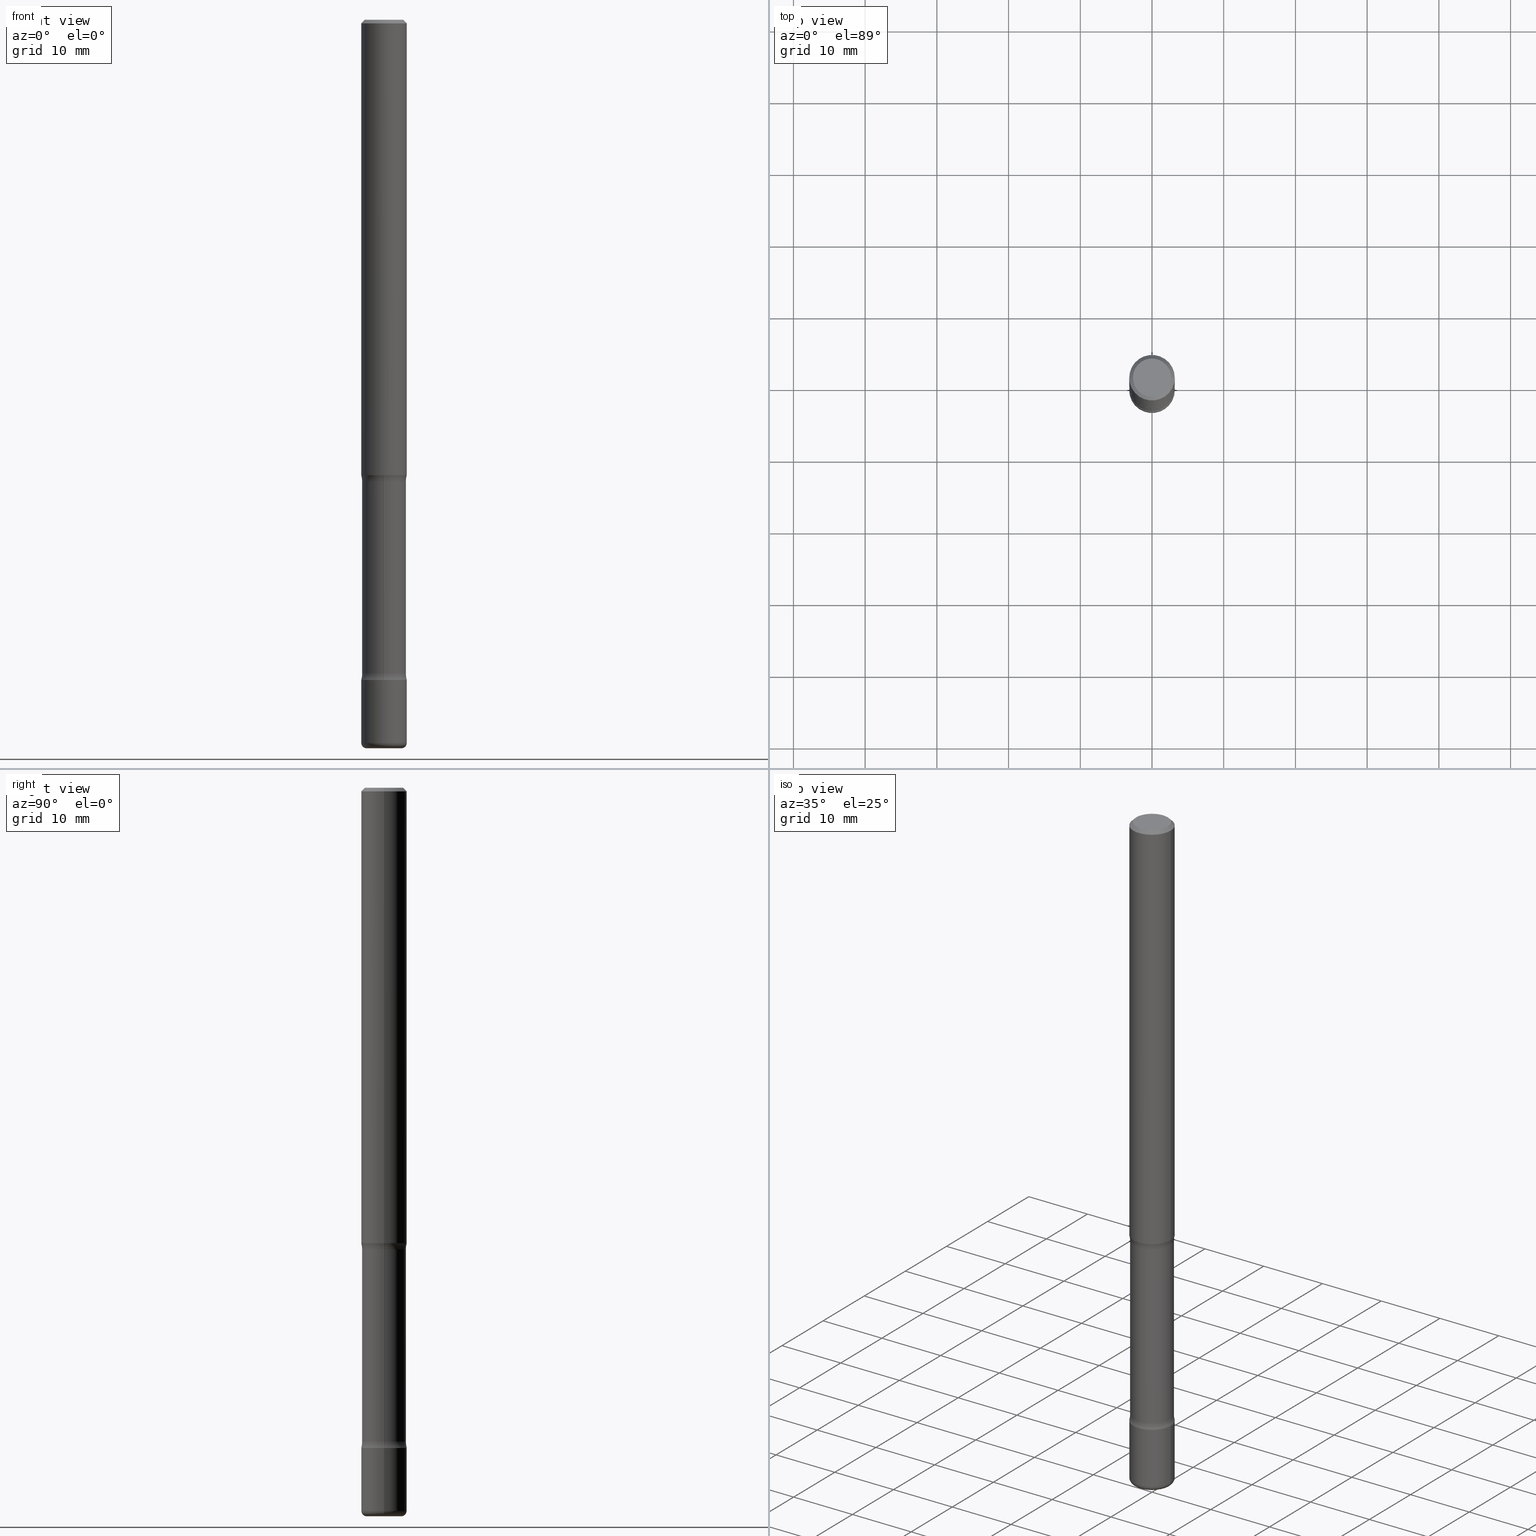
[diagram: canonical four-view strip — front | top / right | iso, engineering-drawing reading convention]
A machine part, canonical four-view strip (front | top / right | iso — engineering-drawing reading convention). The complete STEP part file that produces these views, byte-faithful:
ISO-10303-21;
HEADER;
FILE_DESCRIPTION (( 'STEP AP203' ),
    '1' );
FILE_NAME ('32820.STEP',
    '2023-03-11T07:04:05',
    ( '' ),
    ( '' ),
    'SwSTEP 2.0',
    'SolidWorks 2022',
    '' );
FILE_SCHEMA (( 'CONFIG_CONTROL_DESIGN' ));
ENDSEC;

DATA;
#1 = FACE_OUTER_BOUND ( 'NONE', #273, .T. ) ;
#2 = CARTESIAN_POINT ( 'NONE',  ( -0.1249999999999999584, -1.176844143360627736E-14, -3.624999999999999556 ) ) ;
#3 = DIRECTION ( 'NONE',  ( 1.000000000000000000, -6.982962677686266711E-15, 4.876176775795935793E-29 ) ) ;
#4 = DIRECTION ( 'NONE',  ( 2.445468806185136597E-29, -3.491481338843145583E-15, -1.000000000000000000 ) ) ;
#5 = AXIS2_PLACEMENT_3D ( 'NONE', #493, #652, #580 ) ;
#6 = AXIS2_PLACEMENT_3D ( 'NONE', #561, #365, #695 ) ;
#7 = DIRECTION ( 'NONE',  ( -2.445468806185136597E-29, 3.491481338843145583E-15, 1.000000000000000000 ) ) ;
#8 = MANIFOLD_SOLID_BREP ( 'Body-Move/Copy2[1]', #246 ) ;
#9 = DIRECTION ( 'NONE',  ( -1.000000000000000000, 7.105427357600997914E-15, 0.000000000000000000 ) ) ;
#10 = DIRECTION ( 'NONE',  ( 2.445468806185136597E-29, -3.491481338843145583E-15, -1.000000000000000000 ) ) ;
#11 = ORIENTED_EDGE ( 'NONE', *, *, #459, .T. ) ;
#12 = FACE_OUTER_BOUND ( 'NONE', #169, .T. ) ;
#13 = ADVANCED_FACE ( 'NONE', ( #175 ), #258, .F. ) ;
#14 = CARTESIAN_POINT ( 'NONE',  ( -0.2449999999999998845, -7.110075491355131868E-15, -2.535000000000000586 ) ) ;
#15 = ORIENTED_EDGE ( 'NONE', *, *, #185, .T. ) ;
#16 = TOROIDAL_SURFACE ( 'NONE', #463, 0.2449999999999998845, 0.1250000000000000278 ) ;
#17 = TOROIDAL_SURFACE ( 'NONE', #546, 0.09499999999999998723, 0.02999999999999970399 ) ;
#18 = FACE_OUTER_BOUND ( 'NONE', #376, .T. ) ;
#19 = DIRECTION ( 'NONE',  ( 1.000000000000000000, -6.982962677686258822E-15, 0.000000000000000000 ) ) ;
#20 = ORIENTED_EDGE ( 'NONE', *, *, #207, .T. ) ;
#21 = CARTESIAN_POINT ( 'NONE',  ( -0.1249999999999996947, 8.030407079339181671E-16, -0.02000000000000002470 ) ) ;
#22 = CARTESIAN_POINT ( 'NONE',  ( 9.781875224740545266E-29, -1.396592535537258075E-14, -3.999999999999999556 ) ) ;
#23 = ORIENTED_EDGE ( 'NONE', *, *, #458, .T. ) ;
#24 = EDGE_CURVE ( 'NONE', #671, #733, #764, .T. ) ;
#25 = DIRECTION ( 'NONE',  ( 1.000000000000000000, -6.982962677686266711E-15, 4.876176775795935793E-29 ) ) ;
#26 = ORIENTED_EDGE ( 'NONE', *, *, #42, .T. ) ;
#27 = AXIS2_PLACEMENT_3D ( 'NONE', #366, #682, #132 ) ;
#28 = AXIS2_PLACEMENT_3D ( 'NONE', #196, #511, #762 ) ;
#29 = COORDINATED_UNIVERSAL_TIME_OFFSET ( 5, 0, .BEHIND. ) ;
#30 = CC_DESIGN_SECURITY_CLASSIFICATION ( #401, ( #665 ) ) ;
#31 = CYLINDRICAL_SURFACE ( 'NONE', #318, 0.1250000000000000000 ) ;
#32 = VERTEX_POINT ( 'NONE', #54 ) ;
#33 = CARTESIAN_POINT ( 'NONE',  ( 0.000000000000000000, 0.000000000000000000, 0.000000000000000000 ) ) ;
#34 = MANIFOLD_SOLID_BREP ( 'Body-Move/Copy2[2]', #502 ) ;
#35 = ADVANCED_FACE ( 'NONE', ( #563 ), #608, .F. ) ;
#36 = ORIENTED_EDGE ( 'NONE', *, *, #229, .T. ) ;
#37 = DIRECTION ( 'NONE',  ( 1.000000000000000000, -6.982962677686266711E-15, 4.876176775795935793E-29 ) ) ;
#38 = ORIENTED_EDGE ( 'NONE', *, *, #767, .F. ) ;
#39 = PRODUCT ( '32820', '32820', '', ( #41 ) ) ;
#40 = DIMENSIONAL_EXPONENTS ( 1.000000000000000000, 0.000000000000000000, 0.000000000000000000, 0.000000000000000000, 0.000000000000000000, 0.000000000000000000, 0.000000000000000000 ) ;
#41 = MECHANICAL_CONTEXT ( 'NONE', #267, 'mechanical' ) ;
#42 = EDGE_CURVE ( 'NONE', #733, #671, #701, .T. ) ;
#43 = DIRECTION ( 'NONE',  ( 1.000000000000000000, -6.982962677686266711E-15, 0.000000000000000000 ) ) ;
#44 = ORIENTED_EDGE ( 'NONE', *, *, #425, .T. ) ;
#45 = ORIENTED_EDGE ( 'NONE', *, *, #587, .F. ) ;
#46 = APPROVAL_ROLE ( '' ) ;
#47 = CARTESIAN_POINT ( 'NONE',  ( 9.774246177164491173E-29, -1.395670247582296742E-14, -3.997119036516931345 ) ) ;
#48 = LOCAL_TIME ( 2, 4, 5.000000000000000000, #624 ) ;
#49 = ORIENTED_EDGE ( 'NONE', *, *, #125, .F. ) ;
#50 = DIRECTION ( 'NONE',  ( -1.000000000000000000, 6.982962677686266711E-15, 0.000000000000000000 ) ) ;
#51 = EDGE_LOOP ( 'NONE', ( #705, #20, #415, #45 ) ) ;
#52 = EDGE_CURVE ( 'NONE', #332, #588, #245, .T. ) ;
#53 = DIRECTION ( 'NONE',  ( -6.982962677686265133E-15, -1.000000000000000000, 0.000000000000000000 ) ) ;
#54 = CARTESIAN_POINT ( 'NONE',  ( -0.1250000000000000000, -1.237072196455672054E-14, -3.624999999999999556 ) ) ;
#55 = CALENDAR_DATE ( 2023, 11, 3 ) ;
#56 = CARTESIAN_POINT ( 'NONE',  ( -8.232597597324858622E-16, -0.1200000000000139289, -3.997119036516930457 ) ) ;
#57 = VECTOR ( 'NONE', #311, 39.37007874015748854 ) ;
#58 = AXIS2_PLACEMENT_3D ( 'NONE', #568, #193, #50 ) ;
#59 = CARTESIAN_POINT ( 'NONE',  ( -8.404110047269244572E-16, -0.1200000000000126243, -3.589999999999998970 ) ) ;
#60 = LOCAL_TIME ( 2, 4, 5.000000000000000000, #29 ) ;
#61 = CARTESIAN_POINT ( 'NONE',  ( 4.890937612370279289E-31, -6.982962677686299005E-17, -0.02000000000000002470 ) ) ;
#62 = ADVANCED_FACE ( 'NONE', ( #697 ), #730, .F. ) ;
#63 = DIRECTION ( 'NONE',  ( 2.443900111253762229E-29, -3.493727799269444668E-15, -1.000000000000000000 ) ) ;
#64 = CARTESIAN_POINT ( 'NONE',  ( 8.864824422421120163E-29, -1.265661985330640259E-14, -3.624999999999999556 ) ) ;
#65 = DIRECTION ( 'NONE',  ( 6.982962677686265922E-15, 1.000000000000000000, -3.493727799269444274E-15 ) ) ;
#66 = EDGE_CURVE ( 'NONE', #454, #615, #558, .T. ) ;
#67 = ORIENTED_EDGE ( 'NONE', *, *, #618, .F. ) ;
#68 = DIRECTION ( 'NONE',  ( 6.982962677686265922E-15, 1.000000000000000000, -3.493727799269444274E-15 ) ) ;
#69 = DIRECTION ( 'NONE',  ( -1.000000000000000000, 6.982962677686266711E-15, 0.000000000000000000 ) ) ;
#70 = AXIS2_PLACEMENT_3D ( 'NONE', #113, #377, #685 ) ;
#71 = CIRCLE ( 'NONE', #743, 0.1250000000000000278 ) ;
#72 = LINE ( 'NONE', #270, #573 ) ;
#73 = DIRECTION ( 'NONE',  ( 1.000000000000000000, -6.982962677686266711E-15, 4.883557194083112901E-29 ) ) ;
#74 = EDGE_LOOP ( 'NONE', ( #155, #91 ) ) ;
#75 = CC_DESIGN_PERSON_AND_ORGANIZATION_ASSIGNMENT ( #289, #537, ( #665 ) ) ;
#76 = EDGE_CURVE ( 'NONE', #242, #719, #256, .T. ) ;
#77 = CARTESIAN_POINT ( 'NONE',  ( 8.779287918527237489E-29, -1.253433938033197099E-14, -3.589999999999999858 ) ) ;
#78 = DIRECTION ( 'NONE',  ( 1.000000000000000000, -6.982962677686262766E-15, 0.000000000000000000 ) ) ;
#79 = EDGE_LOOP ( 'NONE', ( #327, #736, #298, #482 ) ) ;
#80 = EDGE_CURVE ( 'NONE', #596, #417, #121, .T. ) ;
#81 = DIRECTION ( 'NONE',  ( -1.000000000000000000, 6.982962677686266711E-15, 0.000000000000000000 ) ) ;
#82 = DIRECTION ( 'NONE',  ( -2.438088387897960049E-29, 3.491481338843145188E-15, 1.000000000000000000 ) ) ;
#83 = ORIENTED_EDGE ( 'NONE', *, *, #52, .F. ) ;
#84 = AXIS2_PLACEMENT_3D ( 'NONE', #566, #380, #744 ) ;
#85 =( GEOMETRIC_REPRESENTATION_CONTEXT ( 3 ) GLOBAL_UNCERTAINTY_ASSIGNED_CONTEXT ( ( #358 ) ) GLOBAL_UNIT_ASSIGNED_CONTEXT ( ( #347, #670, #607 ) ) REPRESENTATION_CONTEXT ( 'NONE', 'WORKASPACE' ) );
#86 = PLANE ( 'NONE',  #560 ) ;
#87 = CARTESIAN_POINT ( 'NONE',  ( -0.1249999999999996947, 8.030407079339181671E-16, -0.02000000000000002470 ) ) ;
#88 = ADVANCED_FACE ( 'NONE', ( #570 ), #305, .T. ) ;
#89 = ORIENTED_EDGE ( 'NONE', *, *, #776, .T. ) ;
#90 = CARTESIAN_POINT ( 'NONE',  ( 6.199263423679323022E-29, -8.850905193967376503E-15, -2.535000000000000586 ) ) ;
#91 = ORIENTED_EDGE ( 'NONE', *, *, #738, .T. ) ;
#92 = DIRECTION ( 'NONE',  ( 2.443900111253762229E-29, -3.493727799269444668E-15, -1.000000000000000000 ) ) ;
#93 = PLANE ( 'NONE',  #765 ) ;
#94 = ORIENTED_EDGE ( 'NONE', *, *, #706, .T. ) ;
#95 = AXIS2_PLACEMENT_3D ( 'NONE', #130, #63, #437 ) ;
#96 = CIRCLE ( 'NONE', #464, 0.1200000000000000927 ) ;
#97 = CARTESIAN_POINT ( 'NONE',  ( -0.1249999999999998473, -1.297300249550716373E-14, -3.970000000000000195 ) ) ;
#98 = DIRECTION ( 'NONE',  ( -2.445468806185136597E-29, 3.491481338843145583E-15, 1.000000000000000000 ) ) ;
#99 = VERTEX_POINT ( 'NONE', #429 ) ;
#100 = DIRECTION ( 'NONE',  ( 6.982962677686265922E-15, 1.000000000000000000, -4.370956789862821150E-15 ) ) ;
#101 = DIRECTION ( 'NONE',  ( -2.445468806185136597E-29, 3.491481338843145583E-15, 1.000000000000000000 ) ) ;
#102 = VERTEX_POINT ( 'NONE', #758 ) ;
#103 = APPLICATION_PROTOCOL_DEFINITION ( 'international standard', 'config_control_design', 1994, #267 ) ;
#104 = CARTESIAN_POINT ( 'NONE',  ( 0.1049999999999996769, -8.238720831321554950E-16, 4.268512490105855498E-18 ) ) ;
#105 = ORIENTED_EDGE ( 'NONE', *, *, #324, .T. ) ;
#106 = CIRCLE ( 'NONE', #803, 0.1200000000000000927 ) ;
#107 = AXIS2_PLACEMENT_3D ( 'NONE', #116, #625, #363 ) ;
#108 = CARTESIAN_POINT ( 'NONE',  ( 6.113672015462842613E-29, -8.728703347107864943E-15, -2.500000000000000000 ) ) ;
#109 = AXIS2_PLACEMENT_3D ( 'NONE', #133, #383, #262 ) ;
#110 = ORIENTED_EDGE ( 'NONE', *, *, #368, .T. ) ;
#111 = ADVANCED_FACE ( 'NONE', ( #632 ), #176, .F. ) ;
#112 = LINE ( 'NONE', #802, #423 ) ;
#113 = CARTESIAN_POINT ( 'NONE',  ( 6.200973301154521135E-29, -8.848456552102710366E-15, -2.535000000000000586 ) ) ;
#114 = CALENDAR_DATE ( 2023, 11, 3 ) ;
#115 = EDGE_LOOP ( 'NONE', ( #336, #419 ) ) ;
#116 = CARTESIAN_POINT ( 'NONE',  ( 9.774246177164491173E-29, -1.395670247582296742E-14, -3.997119036516931345 ) ) ;
#117 = CARTESIAN_POINT ( 'NONE',  ( 9.781875224740546387E-29, -1.396592535537258233E-14, -4.000000000000000000 ) ) ;
#118 = APPROVAL_DATE_TIME ( #550, #800 ) ;
#119 = EDGE_CURVE ( 'NONE', #332, #784, #582, .T. ) ;
#120 = DIRECTION ( 'NONE',  ( -2.445468806185136597E-29, 3.491481338843145583E-15, 1.000000000000000000 ) ) ;
#121 = CIRCLE ( 'NONE', #200, 0.1250000000000000000 ) ;
#122 = AXIS2_PLACEMENT_3D ( 'NONE', #590, #140, #509 ) ;
#123 = DIRECTION ( 'NONE',  ( -2.445468806185136597E-29, 3.491481338843145583E-15, 1.000000000000000000 ) ) ;
#124 = CONICAL_SURFACE ( 'NONE', #636, 1127.411546571649069, 1.535889741755015248 ) ;
#125 = EDGE_CURVE ( 'NONE', #174, #719, #626, .T. ) ;
#126 = SHAPE_DEFINITION_REPRESENTATION ( #182, #496 ) ;
#127 = EDGE_CURVE ( 'NONE', #540, #144, #715, .T. ) ;
#128 = LINE ( 'NONE', #679, #635 ) ;
#129 = VERTEX_POINT ( 'NONE', #179 ) ;
#130 = CARTESIAN_POINT ( 'NONE',  ( 6.115436797260638461E-29, -8.726176079128278767E-15, -2.500000000000000000 ) ) ;
#131 = CARTESIAN_POINT ( 'NONE',  ( 6.199263423679323022E-29, -8.850905193967376503E-15, -2.535000000000000586 ) ) ;
#132 = DIRECTION ( 'NONE',  ( 1.000000000000000000, -6.982962677686266711E-15, 4.883557194083112901E-29 ) ) ;
#133 = CARTESIAN_POINT ( 'NONE',  ( 6.113672015462842613E-29, -8.728703347107864943E-15, -2.500000000000000000 ) ) ;
#134 = CC_DESIGN_PERSON_AND_ORGANIZATION_ASSIGNMENT ( #337, #236, ( #401 ) ) ;
#135 = PLANE ( 'NONE',  #232 ) ;
#136 = AXIS2_PLACEMENT_3D ( 'NONE', #760, #82, #699 ) ;
#137 = VECTOR ( 'NONE', #168, 39.37007874015748854 ) ;
#138 = VERTEX_POINT ( 'NONE', #59 ) ;
#139 = DIRECTION ( 'NONE',  ( 1.000000000000000000, -6.982962677686261189E-15, 0.000000000000000000 ) ) ;
#140 = DIRECTION ( 'NONE',  ( -2.445468806185136597E-29, 3.491481338843145583E-15, 1.000000000000000000 ) ) ;
#141 = ORIENTED_EDGE ( 'NONE', *, *, #80, .T. ) ;
#142 = CARTESIAN_POINT ( 'NONE',  ( 8.728703347108443769E-16, 0.1249999999999912847, -2.500000000000000444 ) ) ;
#143 = DIRECTION ( 'NONE',  ( -2.445468806185136597E-29, 3.491481338843145583E-15, 1.000000000000000000 ) ) ;
#144 = VERTEX_POINT ( 'NONE', #2 ) ;
#145 = EDGE_LOOP ( 'NONE', ( #522, #411 ) ) ;
#146 = CARTESIAN_POINT ( 'NONE',  ( 0.000000000000000000, 0.000000000000000000, 0.000000000000000000 ) ) ;
#147 = CARTESIAN_POINT ( 'NONE',  ( 9.781875224740545266E-29, -1.396592535537258075E-14, -3.999999999999999556 ) ) ;
#148 = EDGE_LOOP ( 'NONE', ( #288, #314, #535, #714 ) ) ;
#149 = VECTOR ( 'NONE', #375, 39.37007874015748143 ) ;
#150 = AXIS2_PLACEMENT_3D ( 'NONE', #108, #101, #668 ) ;
#151 = ADVANCED_FACE ( 'NONE', ( #252 ), #495, .T. ) ;
#152 = AXIS2_PLACEMENT_3D ( 'NONE', #321, #279, #773 ) ;
#153 = DATE_AND_TIME ( #286, #60 ) ;
#154 = CARTESIAN_POINT ( 'NONE',  ( 8.728703347108718885E-16, 0.1249999999999873296, -3.625000000000000444 ) ) ;
#155 = ORIENTED_EDGE ( 'NONE', *, *, #76, .T. ) ;
#156 = DATE_TIME_ROLE ( 'creation_date' ) ;
#157 = FACE_OUTER_BOUND ( 'NONE', #230, .T. ) ;
#158 = DIRECTION ( 'NONE',  ( 6.982962677686265922E-15, 1.000000000000000000, -3.493727799269444274E-15 ) ) ;
#159 = PERSON_AND_ORGANIZATION ( #693, #613 ) ;
#160 = ORIENTED_EDGE ( 'NONE', *, *, #207, .F. ) ;
#161 = DIRECTION ( 'NONE',  ( -6.982962677686266711E-15, -1.000000000000000000, 3.491481338843145583E-15 ) ) ;
#162 = VERTEX_POINT ( 'NONE', #680 ) ;
#163 = ADVANCED_FACE ( 'NONE', ( #750 ), #617, .T. ) ;
#164 = AXIS2_PLACEMENT_3D ( 'NONE', #548, #218, #418 ) ;
#165 = DIRECTION ( 'NONE',  ( 1.000000000000000000, 0.000000000000000000, 0.000000000000000000 ) ) ;
#166 = ORIENTED_EDGE ( 'NONE', *, *, #791, .F. ) ;
#167 = AXIS2_PLACEMENT_3D ( 'NONE', #131, #204, #68 ) ;
#168 = DIRECTION ( 'NONE',  ( -0.9993908270190959842, 6.856857904024576981E-15, -0.03489949670249575808 ) ) ;
#169 = EDGE_LOOP ( 'NONE', ( #387, #320 ) ) ;
#170 = FACE_OUTER_BOUND ( 'NONE', #79, .T. ) ;
#171 = VERTEX_POINT ( 'NONE', #804 ) ;
#172 = ADVANCED_FACE ( 'NONE', ( #250 ), #191, .F. ) ;
#173 = DIRECTION ( 'NONE',  ( 6.982962677686265922E-15, 1.000000000000000000, -3.493727799269444274E-15 ) ) ;
#174 = VERTEX_POINT ( 'NONE', #452 ) ;
#175 = FACE_OUTER_BOUND ( 'NONE', #552, .T. ) ;
#176 = TOROIDAL_SURFACE ( 'NONE', #27, 0.2449999999999998845, 0.1250000000000000278 ) ;
#177 = CIRCLE ( 'NONE', #294, 0.1250000000000000000 ) ;
#178 = DIRECTION ( 'NONE',  ( -2.445468806185136597E-29, 3.491481338843145583E-15, 1.000000000000000000 ) ) ;
#179 = CARTESIAN_POINT ( 'NONE',  ( -0.1200000000000000927, -1.172510407857052291E-14, -3.589999999999999858 ) ) ;
#180 = CARTESIAN_POINT ( 'NONE',  ( 0.1250000000000000000, -1.352949018801718435E-14, -3.624999999999999556 ) ) ;
#181 = EDGE_CURVE ( 'NONE', #471, #700, #335, .T. ) ;
#182 = PRODUCT_DEFINITION_SHAPE ( 'NONE', 'NONE',  #737 ) ;
#183 = DIRECTION ( 'NONE',  ( -2.445468806185136877E-29, 3.491481338843145188E-15, 1.000000000000000000 ) ) ;
#184 = DIRECTION ( 'NONE',  ( -2.445468806185136597E-29, 3.491481338843145583E-15, 1.000000000000000000 ) ) ;
#185 = EDGE_CURVE ( 'NONE', #344, #171, #687, .T. ) ;
#186 = EDGE_CURVE ( 'NONE', #450, #784, #433, .T. ) ;
#187 = ORIENTED_EDGE ( 'NONE', *, *, #66, .F. ) ;
#188 = DIRECTION ( 'NONE',  ( 1.000000000000000000, -6.982962677686262766E-15, 0.000000000000000000 ) ) ;
#189 = AXIS2_PLACEMENT_3D ( 'NONE', #577, #338, #9 ) ;
#190 = AXIS2_PLACEMENT_3D ( 'NONE', #354, #223, #602 ) ;
#191 = PLANE ( 'NONE',  #5 ) ;
#192 = APPROVAL_PERSON_ORGANIZATION ( #717, #367, #46 ) ;
#193 = DIRECTION ( 'NONE',  ( 2.445468806185136597E-29, -3.491481338843145583E-15, -1.000000000000000000 ) ) ;
#194 = CC_DESIGN_PERSON_AND_ORGANIZATION_ASSIGNMENT ( #729, #528, ( #737 ) ) ;
#195 = DIRECTION ( 'NONE',  ( 2.443900111253761669E-29, -3.493727799269444668E-15, -1.000000000000000000 ) ) ;
#196 = CARTESIAN_POINT ( 'NONE',  ( 8.864824422421120163E-29, -1.265661985330640259E-14, -3.624999999999999556 ) ) ;
#197 = DIRECTION ( 'NONE',  ( 2.443900111253762229E-29, -3.493727799269444668E-15, -1.000000000000000000 ) ) ;
#198 = CARTESIAN_POINT ( 'NONE',  ( 0.1249999999999998473, -1.473405124991807072E-14, -3.970000000000000195 ) ) ;
#199 = ADVANCED_FACE ( 'NONE', ( #402 ), #647, .F. ) ;
#200 = AXIS2_PLACEMENT_3D ( 'NONE', #489, #260, #370 ) ;
#201 = ORIENTED_EDGE ( 'NONE', *, *, #458, .F. ) ;
#202 = AXIS2_PLACEMENT_3D ( 'NONE', #707, #661, #782 ) ;
#203 = ORIENTED_EDGE ( 'NONE', *, *, #485, .T. ) ;
#204 = DIRECTION ( 'NONE',  ( 2.443900111253762229E-29, -3.493727799269444668E-15, -1.000000000000000000 ) ) ;
#205 = DIRECTION ( 'NONE',  ( -1.000000000000000000, 7.105427357600994759E-15, 0.000000000000000000 ) ) ;
#206 = ORIENTED_EDGE ( 'NONE', *, *, #185, .F. ) ;
#207 = EDGE_CURVE ( 'NONE', #784, #332, #461, .T. ) ;
#208 = CYLINDRICAL_SURFACE ( 'NONE', #362, 0.1249999999999998473 ) ;
#209 = FACE_OUTER_BOUND ( 'NONE', #772, .T. ) ;
#210 = ORIENTED_EDGE ( 'NONE', *, *, #690, .T. ) ;
#211 = CC_DESIGN_DATE_AND_TIME_ASSIGNMENT ( #779, #156, ( #737 ) ) ;
#212 = DIRECTION ( 'NONE',  ( 1.000000000000000000, -6.982962677686270655E-15, 0.000000000000000000 ) ) ;
#213 = AXIS2_PLACEMENT_3D ( 'NONE', #638, #448, #73 ) ;
#214 = VERTEX_POINT ( 'NONE', #154 ) ;
#215 = AXIS2_PLACEMENT_3D ( 'NONE', #348, #481, #416 ) ;
#216 = AXIS2_PLACEMENT_3D ( 'NONE', #460, #7, #451 ) ;
#217 =( LENGTH_UNIT ( ) NAMED_UNIT ( * ) SI_UNIT ( $, .METRE. ) );
#218 = DIRECTION ( 'NONE',  ( -1.000000000000000000, 6.982962677686265922E-15, -4.883557194083112901E-29 ) ) ;
#219 = EDGE_LOOP ( 'NONE', ( #796, #404, #686, #484 ) ) ;
#220 = ORIENTED_EDGE ( 'NONE', *, *, #523, .T. ) ;
#221 = PERSON_AND_ORGANIZATION_ROLE ( 'design_owner' ) ;
#222 = EDGE_CURVE ( 'NONE', #138, #228, #106, .T. ) ;
#223 = DIRECTION ( 'NONE',  ( -2.445468806185136597E-29, 3.491481338843145583E-15, 1.000000000000000000 ) ) ;
#224 = EDGE_CURVE ( 'NONE', #596, #724, #654, .T. ) ;
#225 = ORIENTED_EDGE ( 'NONE', *, *, #434, .F. ) ;
#226 = PERSON_AND_ORGANIZATION ( #693, #613 ) ;
#227 = DIRECTION ( 'NONE',  ( 6.982962677686265922E-15, 1.000000000000000000, -4.553079989440439092E-15 ) ) ;
#228 = VERTEX_POINT ( 'NONE', #443 ) ;
#229 = EDGE_CURVE ( 'NONE', #238, #450, #398, .T. ) ;
#230 = EDGE_LOOP ( 'NONE', ( #110, #763 ) ) ;
#231 = AXIS2_PLACEMENT_3D ( 'NONE', #557, #753, #692 ) ;
#232 = AXIS2_PLACEMENT_3D ( 'NONE', #516, #322, #326 ) ;
#233 = AXIS2_PLACEMENT_3D ( 'NONE', #266, #579, #759 ) ;
#234 = DIRECTION ( 'NONE',  ( 1.000000000000000000, -6.982962677686262766E-15, 0.000000000000000000 ) ) ;
#235 = ORIENTED_EDGE ( 'NONE', *, *, #470, .T. ) ;
#236 = PERSON_AND_ORGANIZATION_ROLE ( 'classification_officer' ) ;
#237 = EDGE_LOOP ( 'NONE', ( #166, #89, #694, #538 ) ) ;
#238 = VERTEX_POINT ( 'NONE', #397 ) ;
#239 = DIRECTION ( 'NONE',  ( 2.443900111253762229E-29, -3.493727799269444668E-15, -1.000000000000000000 ) ) ;
#240 = ORIENTED_EDGE ( 'NONE', *, *, #328, .F. ) ;
#241 = EDGE_CURVE ( 'NONE', #450, #238, #571, .T. ) ;
#242 = VERTEX_POINT ( 'NONE', #280 ) ;
#243 = ORIENTED_EDGE ( 'NONE', *, *, #403, .F. ) ;
#244 = CARTESIAN_POINT ( 'NONE',  ( 0.09499999999999998723, -1.452456236958748398E-14, -3.970000000000000195 ) ) ;
#245 = LINE ( 'NONE', #506, #149 ) ;
#246 = CLOSED_SHELL ( 'NONE', ( #660, #449, #88, #297, #721, #355, #172, #62 ) ) ;
#247 = CIRCLE ( 'NONE', #584, 0.1250000000000000278 ) ;
#248 = FACE_OUTER_BOUND ( 'NONE', #148, .T. ) ;
#249 = TOROIDAL_SURFACE ( 'NONE', #167, 0.2449999999999998845, 0.1250000000000000278 ) ;
#250 = FACE_OUTER_BOUND ( 'NONE', #145, .T. ) ;
#251 = CARTESIAN_POINT ( 'NONE',  ( 8.779233014204640876E-29, -1.253441800644689261E-14, -3.590000000000000302 ) ) ;
#252 = FACE_OUTER_BOUND ( 'NONE', #518, .T. ) ;
#253 = EDGE_CURVE ( 'NONE', #129, #144, #422, .T. ) ;
#254 = CARTESIAN_POINT ( 'NONE',  ( 6.199263423679323022E-29, -8.850905193967376503E-15, -2.535000000000000586 ) ) ;
#255 = CARTESIAN_POINT ( 'NONE',  ( 1.060531293745186782E-27, -1.514157617551786646E-13, -43.36719777667440923 ) ) ;
#256 = CIRCLE ( 'NONE', #621, 0.08250000000000003164 ) ;
#257 = CYLINDRICAL_SURFACE ( 'NONE', #107, 0.1199999999999999817 ) ;
#258 = TOROIDAL_SURFACE ( 'NONE', #595, 0.2449999999999998845, 0.1250000000000000278 ) ;
#259 = AXIS2_PLACEMENT_3D ( 'NONE', #296, #239, #292 ) ;
#260 = DIRECTION ( 'NONE',  ( -2.445468806185136597E-29, 3.491481338843145583E-15, 1.000000000000000000 ) ) ;
#261 = VECTOR ( 'NONE', #524, 39.37007874015748143 ) ;
#262 = DIRECTION ( 'NONE',  ( 1.000000000000000000, -6.982962677686265922E-15, 4.876176775795935793E-29 ) ) ;
#263 = DIRECTION ( 'NONE',  ( -2.445468806185136597E-29, 3.491481338843145583E-15, 1.000000000000000000 ) ) ;
#264 = ORIENTED_EDGE ( 'NONE', *, *, #631, .F. ) ;
#265 = EDGE_CURVE ( 'NONE', #171, #99, #382, .T. ) ;
#266 = CARTESIAN_POINT ( 'NONE',  ( -1.680822009453962313E-15, -0.2450000000000087108, -2.534999999999999698 ) ) ;
#267 = APPLICATION_CONTEXT ( 'configuration controlled 3d designs of mechanical parts and assemblies' ) ;
#268 = FACE_OUTER_BOUND ( 'NONE', #278, .T. ) ;
#269 = EDGE_LOOP ( 'NONE', ( #264, #220, #203, #581 ) ) ;
#270 = CARTESIAN_POINT ( 'NONE',  ( 0.1249999999999996947, -9.273918764983021797E-16, -0.02000000000000002470 ) ) ;
#271 = DIRECTION ( 'NONE',  ( -1.000000000000000000, 7.105427357601003436E-15, 0.000000000000000000 ) ) ;
#272 = VECTOR ( 'NONE', #183, 39.37007874015748143 ) ;
#273 = EDGE_LOOP ( 'NONE', ( #206, #38, #23, #105 ) ) ;
#274 = CIRCLE ( 'NONE', #233, 0.1250000000000000278 ) ;
#275 = EDGE_LOOP ( 'NONE', ( #283, #594 ) ) ;
#276 = LINE ( 'NONE', #334, #261 ) ;
#277 = DIRECTION ( 'NONE',  ( 1.000000000000000000, -6.982962677686261977E-15, 0.000000000000000000 ) ) ;
#278 = EDGE_LOOP ( 'NONE', ( #669, #235 ) ) ;
#279 = DIRECTION ( 'NONE',  ( -2.445468806185136597E-29, 3.491481338843145583E-15, 1.000000000000000000 ) ) ;
#280 = CARTESIAN_POINT ( 'NONE',  ( -0.08249999999999986511, -1.338983093446346564E-14, -4.000000000000000000 ) ) ;
#281 = ORIENTED_EDGE ( 'NONE', *, *, #523, .F. ) ;
#282 = DIRECTION ( 'NONE',  ( -2.445468806185136597E-29, 3.491481338843145583E-15, 1.000000000000000000 ) ) ;
#283 = ORIENTED_EDGE ( 'NONE', *, *, #80, .F. ) ;
#284 = CIRCLE ( 'NONE', #399, 0.1049999999999996769 ) ;
#285 = CC_DESIGN_PERSON_AND_ORGANIZATION_ASSIGNMENT ( #159, #408, ( #665 ) ) ;
#286 = CALENDAR_DATE ( 2023, 11, 3 ) ;
#287 = DIRECTION ( 'NONE',  ( -2.443900111253761669E-29, 3.493727799269444668E-15, 1.000000000000000000 ) ) ;
#288 = ORIENTED_EDGE ( 'NONE', *, *, #748, .F. ) ;
#289 = PERSON_AND_ORGANIZATION ( #693, #613 ) ;
#290 = DIRECTION ( 'NONE',  ( -2.445468806185136597E-29, 3.491481338843145583E-15, 1.000000000000000000 ) ) ;
#291 = CARTESIAN_POINT ( 'NONE',  ( 6.115436797260638461E-29, -8.726176079128278767E-15, -2.500000000000000000 ) ) ;
#292 = DIRECTION ( 'NONE',  ( 6.982962677686265922E-15, 1.000000000000000000, -4.370956789862821150E-15 ) ) ;
#293 = EDGE_LOOP ( 'NONE', ( #49, #44, #507 ) ) ;
#294 = AXIS2_PLACEMENT_3D ( 'NONE', #789, #161, #234 ) ;
#295 = CIRCLE ( 'NONE', #202, 0.1250000000000000278 ) ;
#296 = CARTESIAN_POINT ( 'NONE',  ( 8.864824422421120163E-29, -1.265661985330640259E-14, -3.624999999999999556 ) ) ;
#297 = ADVANCED_FACE ( 'NONE', ( #209, #774 ), #644, .F. ) ;
#298 = ORIENTED_EDGE ( 'NONE', *, *, #562, .T. ) ;
#299 = EDGE_CURVE ( 'NONE', #417, #596, #444, .T. ) ;
#300 = DATE_TIME_ROLE ( 'classification_date' ) ;
#301 = DIRECTION ( 'NONE',  ( -1.000000000000000000, 6.982962677686265922E-15, -4.883557194083112901E-29 ) ) ;
#302 = ORIENTED_EDGE ( 'NONE', *, *, #125, .T. ) ;
#303 = CARTESIAN_POINT ( 'NONE',  ( 0.1250000000000000000, -9.601573681818648281E-15, -2.500000000000000000 ) ) ;
#304 = DIRECTION ( 'NONE',  ( 1.000000000000000000, -6.982962677686254089E-15, 0.000000000000000000 ) ) ;
#305 = TOROIDAL_SURFACE ( 'NONE', #662, 0.09499999999999998723, 0.02999999999999970399 ) ;
#306 = CIRCLE ( 'NONE', #778, 0.1049999999999996769 ) ;
#307 = AXIS2_PLACEMENT_3D ( 'NONE', #64, #312, #329 ) ;
#308 = DIRECTION ( 'NONE',  ( 1.000000000000000000, -6.982962677686261189E-15, 0.000000000000000000 ) ) ;
#309 = COORDINATED_UNIVERSAL_TIME_OFFSET ( 5, 0, .BEHIND. ) ;
#310 = DIRECTION ( 'NONE',  ( 2.445468806185136597E-29, -3.491481338843145583E-15, -1.000000000000000000 ) ) ;
#311 = DIRECTION ( 'NONE',  ( 0.9993908270190959842, -6.978169709227524922E-15, -0.03489949670249575808 ) ) ;
#312 = DIRECTION ( 'NONE',  ( -2.445468806185136597E-29, 3.491481338843145583E-15, 1.000000000000000000 ) ) ;
#313 = CARTESIAN_POINT ( 'NONE',  ( 9.708511160554992872E-29, -1.386118091520728738E-14, -3.970000000000000195 ) ) ;
#314 = ORIENTED_EDGE ( 'NONE', *, *, #500, .F. ) ;
#315 = ADVANCED_FACE ( 'NONE', ( #268 ), #135, .F. ) ;
#316 = AXIS2_PLACEMENT_3D ( 'NONE', #22, #462, #277 ) ;
#317 = DIRECTION ( 'NONE',  ( 1.000000000000000000, -6.982962677686265922E-15, 4.876176775795935793E-29 ) ) ;
#318 = AXIS2_PLACEMENT_3D ( 'NONE', #735, #282, #37 ) ;
#319 = DIRECTION ( 'NONE',  ( 1.000000000000000000, -6.982962677686264344E-15, 4.883557194083112340E-29 ) ) ;
#320 = ORIENTED_EDGE ( 'NONE', *, *, #42, .F. ) ;
#321 = CARTESIAN_POINT ( 'NONE',  ( 9.781875224740546387E-29, -1.396592535537258233E-14, -4.000000000000000000 ) ) ;
#322 = DIRECTION ( 'NONE',  ( 2.438088387897960049E-29, -3.491481338843145188E-15, -1.000000000000000000 ) ) ;
#323 = EDGE_LOOP ( 'NONE', ( #225, #388, #713, #551 ) ) ;
#324 = EDGE_CURVE ( 'NONE', #99, #171, #649, .T. ) ;
#325 = PLANE ( 'NONE',  #109 ) ;
#326 = DIRECTION ( 'NONE',  ( -1.000000000000000000, 6.982962677686265922E-15, -4.876176775795935793E-29 ) ) ;
#327 = ORIENTED_EDGE ( 'NONE', *, *, #776, .F. ) ;
#328 = EDGE_CURVE ( 'NONE', #588, #32, #531, .T. ) ;
#329 = DIRECTION ( 'NONE',  ( 1.000000000000000000, -6.982962677686262766E-15, 0.000000000000000000 ) ) ;
#330 = DIRECTION ( 'NONE',  ( -0.7071067811865471286, 2.468850131082252722E-15, -0.7071067811865479058 ) ) ;
#331 = AXIS2_PLACEMENT_3D ( 'NONE', #251, #178, #691 ) ;
#332 = VERTEX_POINT ( 'NONE', #198 ) ;
#333 = CIRCLE ( 'NONE', #152, 0.08250000000000003164 ) ;
#334 = CARTESIAN_POINT ( 'NONE',  ( -0.1199999999999999817, -7.876052064195743962E-15, -2.500000000000000000 ) ) ;
#335 = LINE ( 'NONE', #87, #543 ) ;
#336 = ORIENTED_EDGE ( 'NONE', *, *, #767, .T. ) ;
#337 = PERSON_AND_ORGANIZATION ( #693, #613 ) ;
#338 = DIRECTION ( 'NONE',  ( 7.105427357601001859E-15, 1.000000000000000000, -3.491481338843145583E-15 ) ) ;
#339 = EDGE_CURVE ( 'NONE', #724, #700, #412, .T. ) ;
#340 = ORIENTED_EDGE ( 'NONE', *, *, #604, .T. ) ;
#341 = COORDINATED_UNIVERSAL_TIME_OFFSET ( 5, 0, .BEHIND. ) ;
#342 = DIRECTION ( 'NONE',  ( -2.445468806185136597E-29, 3.491481338843145583E-15, 1.000000000000000000 ) ) ;
#343 = AXIS2_PLACEMENT_3D ( 'NONE', #711, #143, #78 ) ;
#344 = VERTEX_POINT ( 'NONE', #785 ) ;
#345 = AXIS2_PLACEMENT_3D ( 'NONE', #739, #795, #173 ) ;
#346 = ADVANCED_FACE ( 'NONE', ( #170 ), #372, .F. ) ;
#347 =( CONVERSION_BASED_UNIT ( 'INCH', #592 ) LENGTH_UNIT ( ) NAMED_UNIT ( #40 ) );
#348 = CARTESIAN_POINT ( 'NONE',  ( 4.890937612370279289E-31, -6.982962677686299005E-17, -0.02000000000000002470 ) ) ;
#349 = VERTEX_POINT ( 'NONE', #104 ) ;
#350 = ORIENTED_EDGE ( 'NONE', *, *, #690, .F. ) ;
#351 = ADVANCED_FACE ( 'NONE', ( #605 ), #539, .T. ) ;
#352 = CARTESIAN_POINT ( 'NONE',  ( -0.1250000000000000278, -3.511088067242232183E-15, -2.500000000000000000 ) ) ;
#353 = ORIENTED_EDGE ( 'NONE', *, *, #127, .F. ) ;
#354 = CARTESIAN_POINT ( 'NONE',  ( 8.779233014204639755E-29, -1.253441800644689103E-14, -3.589999999999999858 ) ) ;
#355 = ADVANCED_FACE ( 'NONE', ( #483 ), #421, .T. ) ;
#356 = ORIENTED_EDGE ( 'NONE', *, *, #434, .T. ) ;
#357 = ORIENTED_EDGE ( 'NONE', *, *, #265, .F. ) ;
#358 = UNCERTAINTY_MEASURE_WITH_UNIT (LENGTH_MEASURE( 1.000000000000000082E-05 ), #347, 'distance_accuracy_value', 'NONE');
#359 = AXIS2_PLACEMENT_3D ( 'NONE', #499, #426, #308 ) ;
#360 = CONICAL_SURFACE ( 'NONE', #58, 0.1249999999999996947, 0.7853981633974477239 ) ;
#361 = APPROVAL_ROLE ( '' ) ;
#362 = AXIS2_PLACEMENT_3D ( 'NONE', #146, #589, #393 ) ;
#363 = DIRECTION ( 'NONE',  ( 6.982962677686265922E-15, 1.000000000000000000, -4.553079989440439092E-15 ) ) ;
#364 = ORIENTED_EDGE ( 'NONE', *, *, #633, .F. ) ;
#365 = DIRECTION ( 'NONE',  ( 2.443900111253762229E-29, -3.493727799269444668E-15, -1.000000000000000000 ) ) ;
#366 = CARTESIAN_POINT ( 'NONE',  ( 6.199263423679323022E-29, -8.850905193967376503E-15, -2.535000000000000586 ) ) ;
#367 = APPROVAL ( #725, 'UNSPECIFIED' ) ;
#368 = EDGE_CURVE ( 'NONE', #214, #102, #435, .T. ) ;
#369 = CARTESIAN_POINT ( 'NONE',  ( 8.864824422421120163E-29, -1.265661985330640259E-14, -3.624999999999999556 ) ) ;
#370 = DIRECTION ( 'NONE',  ( 1.000000000000000000, -6.982962677686270655E-15, 0.000000000000000000 ) ) ;
#371 = AXIS2_PLACEMENT_3D ( 'NONE', #291, #554, #407 ) ;
#372 = TOROIDAL_SURFACE ( 'NONE', #345, 0.2450000000000001066, 0.1250000000000000278 ) ;
#373 = DIRECTION ( 'NONE',  ( 1.000000000000000000, -6.982962677686267499E-15, 4.876206205277409163E-29 ) ) ;
#374 = APPROVAL_PERSON_ORGANIZATION ( #797, #800, #361 ) ;
#375 = DIRECTION ( 'NONE',  ( -2.445468806185136877E-29, 3.491481338843145188E-15, 1.000000000000000000 ) ) ;
#376 = EDGE_LOOP ( 'NONE', ( #591, #549, #600, #532 ) ) ;
#377 = DIRECTION ( 'NONE',  ( 2.443900111253762229E-29, -3.493727799269444668E-15, -1.000000000000000000 ) ) ;
#378 = CARTESIAN_POINT ( 'NONE',  ( 6.113672015462842613E-29, -8.728703347107864943E-15, -2.500000000000000000 ) ) ;
#379 = CC_DESIGN_PERSON_AND_ORGANIZATION_ASSIGNMENT ( #226, #221, ( #39 ) ) ;
#380 = DIRECTION ( 'NONE',  ( -2.445468806185136597E-29, 3.491481338843145583E-15, 1.000000000000000000 ) ) ;
#381 = EDGE_CURVE ( 'NONE', #700, #724, #572, .T. ) ;
#382 = CIRCLE ( 'NONE', #490, 0.1199999999999998845 ) ;
#383 = DIRECTION ( 'NONE',  ( -2.438088387897960049E-29, 3.491481338843145188E-15, 1.000000000000000000 ) ) ;
#384 = AXIS2_PLACEMENT_3D ( 'NONE', #61, #310, #628 ) ;
#385 = APPROVAL_PERSON_ORGANIZATION ( #405, #576, #656 ) ;
#386 = DIRECTION ( 'NONE',  ( 1.000000000000000000, -6.982962677686261977E-15, 0.000000000000000000 ) ) ;
#387 = ORIENTED_EDGE ( 'NONE', *, *, #24, .F. ) ;
#388 = ORIENTED_EDGE ( 'NONE', *, *, #253, .T. ) ;
#389 = CARTESIAN_POINT ( 'NONE',  ( 0.1249999999999996947, -9.273918764983021797E-16, -0.02000000000000002470 ) ) ;
#390 = CARTESIAN_POINT ( 'NONE',  ( 4.890937612370279289E-31, -6.982962677686299005E-17, -0.02000000000000002470 ) ) ;
#391 = ORIENTED_EDGE ( 'NONE', *, *, #339, .F. ) ;
#392 = ORIENTED_EDGE ( 'NONE', *, *, #438, .F. ) ;
#393 = DIRECTION ( 'NONE',  ( 1.000000000000000000, -6.982962677686266711E-15, 4.876176775795935793E-29 ) ) ;
#394 = DIRECTION ( 'NONE',  ( 6.982962677686265922E-15, 1.000000000000000000, -4.553079989440435148E-15 ) ) ;
#395 = ORIENTED_EDGE ( 'NONE', *, *, #674, .F. ) ;
#396 = CARTESIAN_POINT ( 'NONE',  ( 6.113672015462842613E-29, -8.728703347107864943E-15, -2.500000000000000000 ) ) ;
#397 = CARTESIAN_POINT ( 'NONE',  ( 0.09499999999999998723, -1.462930680975277420E-14, -3.999999999999999556 ) ) ;
#398 = CIRCLE ( 'NONE', #634, 0.09499999999999998723 ) ;
#399 = AXIS2_PLACEMENT_3D ( 'NONE', #805, #746, #373 ) ;
#400 = ORIENTED_EDGE ( 'NONE', *, *, #706, .F. ) ;
#401 = SECURITY_CLASSIFICATION ( '', '', #480 ) ;
#402 = FACE_OUTER_BOUND ( 'NONE', #476, .T. ) ;
#403 = EDGE_CURVE ( 'NONE', #344, #162, #676, .T. ) ;
#404 = ORIENTED_EDGE ( 'NONE', *, *, #748, .T. ) ;
#405 = PERSON_AND_ORGANIZATION ( #693, #613 ) ;
#406 = CARTESIAN_POINT ( 'NONE',  ( -0.1049999999999996769, 7.681258945454870110E-16, 4.268512490095161194E-18 ) ) ;
#407 = DIRECTION ( 'NONE',  ( 6.982962677686265922E-15, 1.000000000000000000, -4.370956789862821150E-15 ) ) ;
#408 = PERSON_AND_ORGANIZATION_ROLE ( 'creator' ) ;
#409 = LINE ( 'NONE', #672, #622 ) ;
#410 = AXIS2_PLACEMENT_3D ( 'NONE', #575, #123, #441 ) ;
#411 = ORIENTED_EDGE ( 'NONE', *, *, #587, .T. ) ;
#412 = CIRCLE ( 'NONE', #503, 0.1249999999999996947 ) ;
#413 = LOCAL_TIME ( 2, 4, 5.000000000000000000, #341 ) ;
#414 = COORDINATED_UNIVERSAL_TIME_OFFSET ( 5, 0, .BEHIND. ) ;
#415 = ORIENTED_EDGE ( 'NONE', *, *, #52, .T. ) ;
#416 = DIRECTION ( 'NONE',  ( 1.000000000000000000, -6.982962677686266711E-15, 0.000000000000000000 ) ) ;
#417 = VERTEX_POINT ( 'NONE', #352 ) ;
#418 = DIRECTION ( 'NONE',  ( -6.982962677686265922E-15, -1.000000000000000000, 0.000000000000000000 ) ) ;
#419 = ORIENTED_EDGE ( 'NONE', *, *, #403, .T. ) ;
#420 = ORIENTED_EDGE ( 'NONE', *, *, #487, .T. ) ;
#421 = CYLINDRICAL_SURFACE ( 'NONE', #559, 0.1250000000000000000 ) ;
#422 = CIRCLE ( 'NONE', #742, 0.1250000000000000278 ) ;
#423 = VECTOR ( 'NONE', #749, 39.37007874015748143 ) ;
#424 = FACE_OUTER_BOUND ( 'NONE', #465, .T. ) ;
#425 = EDGE_CURVE ( 'NONE', #174, #242, #473, .T. ) ;
#426 = DIRECTION ( 'NONE',  ( -2.445468806185136597E-29, 3.491481338843145583E-15, 1.000000000000000000 ) ) ;
#427 = APPROVAL_STATUS ( 'not_yet_approved' ) ;
#428 = DIRECTION ( 'NONE',  ( -2.445468806185136597E-29, 3.491481338843145583E-15, 1.000000000000000000 ) ) ;
#429 = CARTESIAN_POINT ( 'NONE',  ( 0.1199999999999998845, -9.688860715289726615E-15, -2.535000000000000586 ) ) ;
#430 = DATE_AND_TIME ( #55, #599 ) ;
#431 = DIRECTION ( 'NONE',  ( 2.443900111253762229E-29, -3.493727799269444668E-15, -1.000000000000000000 ) ) ;
#432 = CARTESIAN_POINT ( 'NONE',  ( 8.779233014204640876E-29, -1.253441800644689261E-14, -3.590000000000000302 ) ) ;
#433 = CIRCLE ( 'NONE', #189, 0.02999999999999969705 ) ;
#434 = EDGE_CURVE ( 'NONE', #129, #486, #545, .T. ) ;
#435 = CIRCLE ( 'NONE', #259, 0.1250000000000000000 ) ;
#436 = DIRECTION ( 'NONE',  ( -6.982962677686266711E-15, -1.000000000000000000, 3.491481338843145583E-15 ) ) ;
#437 = DIRECTION ( 'NONE',  ( 6.982962677686265922E-15, 1.000000000000000000, -4.370956789862821150E-15 ) ) ;
#438 = EDGE_CURVE ( 'NONE', #454, #671, #514, .T. ) ;
#439 = APPLICATION_CONTEXT ( 'configuration controlled 3d designs of mechanical parts and assemblies' ) ;
#440 = FACE_OUTER_BOUND ( 'NONE', #219, .T. ) ;
#441 = DIRECTION ( 'NONE',  ( 1.000000000000000000, -6.982962677686262766E-15, 0.000000000000000000 ) ) ;
#442 = CARTESIAN_POINT ( 'NONE',  ( -8.575622497213803086E-16, -0.1250000000000087153, -2.499999999999999556 ) ) ;
#443 = CARTESIAN_POINT ( 'NONE',  ( 8.379555213224403380E-16, 0.1199999999999875472, -3.590000000000000302 ) ) ;
#444 = CIRCLE ( 'NONE', #612, 0.1250000000000000000 ) ;
#445 = FACE_OUTER_BOUND ( 'NONE', #275, .T. ) ;
#446 = VECTOR ( 'NONE', #431, 39.37007874015748143 ) ;
#447 = CIRCLE ( 'NONE', #307, 0.1250000000000000000 ) ;
#448 = DIRECTION ( 'NONE',  ( -2.445468806185136597E-29, 3.491481338843145583E-15, 1.000000000000000000 ) ) ;
#449 = ADVANCED_FACE ( 'NONE', ( #542 ), #31, .T. ) ;
#450 = VERTEX_POINT ( 'NONE', #593 ) ;
#451 = DIRECTION ( 'NONE',  ( 1.000000000000000000, -6.982962677686270655E-15, 0.000000000000000000 ) ) ;
#452 = CARTESIAN_POINT ( 'NONE',  ( 9.768559658038258986E-29, -1.396484589486830171E-14, -3.997119036516931345 ) ) ;
#453 = ORIENTED_EDGE ( 'NONE', *, *, #119, .T. ) ;
#454 = VERTEX_POINT ( 'NONE', #726 ) ;
#455 = FACE_OUTER_BOUND ( 'NONE', #659, .T. ) ;
#456 = DIRECTION ( 'NONE',  ( -2.445468806185136597E-29, 3.491481338843145583E-15, 1.000000000000000000 ) ) ;
#457 = EDGE_LOOP ( 'NONE', ( #353, #786 ) ) ;
#458 = EDGE_CURVE ( 'NONE', #162, #99, #177, .T. ) ;
#459 = EDGE_CURVE ( 'NONE', #417, #700, #409, .T. ) ;
#460 = CARTESIAN_POINT ( 'NONE',  ( 6.113672015462842613E-29, -8.728703347107864943E-15, -2.500000000000000000 ) ) ;
#461 = CIRCLE ( 'NONE', #343, 0.1250000000000000000 ) ;
#462 = DIRECTION ( 'NONE',  ( -2.445468806185136597E-29, 3.491481338843145583E-15, 1.000000000000000000 ) ) ;
#463 = AXIS2_PLACEMENT_3D ( 'NONE', #254, #428, #619 ) ;
#464 = AXIS2_PLACEMENT_3D ( 'NONE', #684, #120, #564 ) ;
#465 = EDGE_LOOP ( 'NONE', ( #610, #781, #395, #642 ) ) ;
#466 = DIRECTION ( 'NONE',  ( -2.445468806185136597E-29, 3.491481338843145583E-15, 1.000000000000000000 ) ) ;
#467 = CARTESIAN_POINT ( 'NONE',  ( 6.199263423679323022E-29, -8.850905193967376503E-15, -2.535000000000000586 ) ) ;
#468 = CYLINDRICAL_SURFACE ( 'NONE', #755, 0.1249999999999998473 ) ;
#469 = EDGE_LOOP ( 'NONE', ( #36, #709, #497, #67 ) ) ;
#470 = EDGE_CURVE ( 'NONE', #349, #471, #306, .T. ) ;
#471 = VERTEX_POINT ( 'NONE', #406 ) ;
#472 = APPROVAL_DATE_TIME ( #541, #367 ) ;
#473 = LINE ( 'NONE', #731, #137 ) ;
#474 = ADVANCED_FACE ( 'NONE', ( #157 ), #93, .F. ) ;
#475 = CLOSED_SHELL ( 'NONE', ( #696, #611, #111, #555, #734, #163, #199, #151 ) ) ;
#476 = EDGE_LOOP ( 'NONE', ( #769, #364, #340, #519 ) ) ;
#477 = CONICAL_SURFACE ( 'NONE', #384, 0.1249999999999996947, 0.7853981633974477239 ) ;
#478 = ADVANCED_FACE ( 'NONE', ( #783 ), #468, .T. ) ;
#479 = AXIS2_PLACEMENT_3D ( 'NONE', #77, #197, #637 ) ;
#480 = SECURITY_CLASSIFICATION_LEVEL ( 'unclassified' ) ;
#481 = DIRECTION ( 'NONE',  ( -2.445468806185136597E-29, 3.491481338843145583E-15, 1.000000000000000000 ) ) ;
#482 = ORIENTED_EDGE ( 'NONE', *, *, #674, .T. ) ;
#483 = FACE_OUTER_BOUND ( 'NONE', #51, .T. ) ;
#484 = ORIENTED_EDGE ( 'NONE', *, *, #181, .F. ) ;
#485 = EDGE_CURVE ( 'NONE', #454, #228, #128, .T. ) ;
#486 = VERTEX_POINT ( 'NONE', #498 ) ;
#487 = EDGE_CURVE ( 'NONE', #486, #99, #504, .T. ) ;
#488 = DIRECTION ( 'NONE',  ( 1.000000000000000000, -6.982962677686273810E-15, 0.000000000000000000 ) ) ;
#489 = CARTESIAN_POINT ( 'NONE',  ( 6.113672015462842613E-29, -8.728703347107864943E-15, -2.500000000000000000 ) ) ;
#490 = AXIS2_PLACEMENT_3D ( 'NONE', #90, #263, #19 ) ;
#491 = CIRCLE ( 'NONE', #598, 0.1250000000000000000 ) ;
#492 = DIRECTION ( 'NONE',  ( -2.445468806185136597E-29, 3.491481338843145583E-15, 1.000000000000000000 ) ) ;
#493 = CARTESIAN_POINT ( 'NONE',  ( 8.864824422421120163E-29, -1.265661985330640259E-14, -3.624999999999999556 ) ) ;
#494 = DIRECTION ( 'NONE',  ( -6.982962677686266711E-15, -1.000000000000000000, 3.491481338843145583E-15 ) ) ;
#495 = CYLINDRICAL_SURFACE ( 'NONE', #359, 0.1199999999999999817 ) ;
#496 = ADVANCED_BREP_SHAPE_REPRESENTATION ( '32820', ( #8, #34, #569, #567, #623 ), #85 ) ;
#497 = ORIENTED_EDGE ( 'NONE', *, *, #119, .F. ) ;
#498 = CARTESIAN_POINT ( 'NONE',  ( 0.1200000000000000927, -1.337237352776924272E-14, -3.589999999999999858 ) ) ;
#499 = CARTESIAN_POINT ( 'NONE',  ( 6.113672015462842613E-29, -8.728703347107864943E-15, -2.500000000000000000 ) ) ;
#500 = EDGE_CURVE ( 'NONE', #471, #349, #284, .T. ) ;
#501 = ADVANCED_FACE ( 'NONE', ( #440 ), #360, .T. ) ;
#502 = CLOSED_SHELL ( 'NONE', ( #478, #501, #565, #315, #650, #683 ) ) ;
#503 = AXIS2_PLACEMENT_3D ( 'NONE', #390, #98, #43 ) ;
#504 = LINE ( 'NONE', #757, #272 ) ;
#505 = CC_DESIGN_APPROVAL ( #800, ( #401 ) ) ;
#506 = CARTESIAN_POINT ( 'NONE',  ( 0.1250000000000000000, -8.728703347107833388E-16, 6.095220969744919741E-30 ) ) ;
#507 = ORIENTED_EDGE ( 'NONE', *, *, #738, .F. ) ;
#508 = CARTESIAN_POINT ( 'NONE',  ( 9.708511160554992872E-29, -1.386118091520728738E-14, -3.970000000000000195 ) ) ;
#509 = DIRECTION ( 'NONE',  ( 1.000000000000000000, -6.982962677686258822E-15, 0.000000000000000000 ) ) ;
#510 = PLANE ( 'NONE',  #515 ) ;
#511 = DIRECTION ( 'NONE',  ( -2.445468806185136597E-29, 3.491481338843145583E-15, 1.000000000000000000 ) ) ;
#512 = ORIENTED_EDGE ( 'NONE', *, *, #487, .F. ) ;
#513 = CARTESIAN_POINT ( 'NONE',  ( 0.08249999999999986511, -1.453191644018873450E-14, -4.000000000000000000 ) ) ;
#514 = CIRCLE ( 'NONE', #164, 0.1250000000000000278 ) ;
#515 = AXIS2_PLACEMENT_3D ( 'NONE', #396, #195, #630 ) ;
#516 = CARTESIAN_POINT ( 'NONE',  ( 7.332110811570557564E-16, 0.1049999999999996769, -3.644712843334789960E-16 ) ) ;
#517 = EDGE_CURVE ( 'NONE', #784, #32, #112, .T. ) ;
#518 = EDGE_LOOP ( 'NONE', ( #350, #356, #420, #357 ) ) ;
#519 = ORIENTED_EDGE ( 'NONE', *, *, #127, .T. ) ;
#520 = CYLINDRICAL_SURFACE ( 'NONE', #689, 0.1199999999999999817 ) ;
#521 = DIRECTION ( 'NONE',  ( -2.445468806185136877E-29, 3.491481338843145188E-15, 1.000000000000000000 ) ) ;
#522 = ORIENTED_EDGE ( 'NONE', *, *, #328, .T. ) ;
#523 = EDGE_CURVE ( 'NONE', #615, #454, #716, .T. ) ;
#524 = DIRECTION ( 'NONE',  ( -2.445468806185136877E-29, 3.491481338843145188E-15, 1.000000000000000000 ) ) ;
#525 = CARTESIAN_POINT ( 'NONE',  ( -0.2450000000000001066, -1.079358830383464797E-14, -3.590000000000000302 ) ) ;
#526 = ORIENTED_EDGE ( 'NONE', *, *, #76, .F. ) ;
#527 = ADVANCED_FACE ( 'NONE', ( #424 ), #257, .T. ) ;
#528 = PERSON_AND_ORGANIZATION_ROLE ( 'creator' ) ;
#529 = AXIS2_PLACEMENT_3D ( 'NONE', #255, #4, #69 ) ;
#530 = DIRECTION ( 'NONE',  ( -2.445468806185136877E-29, 3.491481338843145188E-15, 1.000000000000000000 ) ) ;
#531 = CIRCLE ( 'NONE', #28, 0.1250000000000000000 ) ;
#532 = ORIENTED_EDGE ( 'NONE', *, *, #381, .F. ) ;
#533 = APPROVAL_DATE_TIME ( #153, #576 ) ;
#534 = DIRECTION ( 'NONE',  ( -6.982962677686265922E-15, -1.000000000000000000, 3.493727799269444668E-15 ) ) ;
#535 = ORIENTED_EDGE ( 'NONE', *, *, #181, .T. ) ;
#536 = EDGE_LOOP ( 'NONE', ( #793, #210, #655, #512 ) ) ;
#537 = PERSON_AND_ORGANIZATION_ROLE ( 'design_supplier' ) ;
#538 = ORIENTED_EDGE ( 'NONE', *, *, #562, .F. ) ;
#539 = CYLINDRICAL_SURFACE ( 'NONE', #688, 0.1199999999999999817 ) ;
#540 = VERTEX_POINT ( 'NONE', #614 ) ;
#541 = DATE_AND_TIME ( #794, #732 ) ;
#542 = FACE_OUTER_BOUND ( 'NONE', #639, .T. ) ;
#543 = VECTOR ( 'NONE', #330, 39.37007874015748143 ) ;
#544 = EDGE_LOOP ( 'NONE', ( #801, #302, #526 ) ) ;
#545 = CIRCLE ( 'NONE', #190, 0.1200000000000000927 ) ;
#546 = AXIS2_PLACEMENT_3D ( 'NONE', #508, #698, #710 ) ;
#547 = APPLICATION_PROTOCOL_DEFINITION ( 'international standard', 'config_control_design', 1994, #439 ) ;
#548 = CARTESIAN_POINT ( 'NONE',  ( 1.710825856033196165E-15, 0.2449999999999910305, -2.535000000000001918 ) ) ;
#549 = ORIENTED_EDGE ( 'NONE', *, *, #299, .T. ) ;
#550 = DATE_AND_TIME ( #114, #48 ) ;
#551 = ORIENTED_EDGE ( 'NONE', *, *, #604, .F. ) ;
#552 = EDGE_LOOP ( 'NONE', ( #281, #94, #26, #392 ) ) ;
#553 = DIRECTION ( 'NONE',  ( 1.000000000000000000, -6.982962677686261189E-15, 0.000000000000000000 ) ) ;
#554 = DIRECTION ( 'NONE',  ( 2.443900111253762229E-29, -3.493727799269444668E-15, -1.000000000000000000 ) ) ;
#555 = ADVANCED_FACE ( 'NONE', ( #1 ), #16, .F. ) ;
#556 = CARTESIAN_POINT ( 'NONE',  ( 0.2450000000000001066, -1.424524386248003079E-14, -3.590000000000000302 ) ) ;
#557 = CARTESIAN_POINT ( 'NONE',  ( 8.864824422421120163E-29, -1.265661985330640259E-14, -3.624999999999999556 ) ) ;
#558 = CIRCLE ( 'NONE', #70, 0.1199999999999998845 ) ;
#559 = AXIS2_PLACEMENT_3D ( 'NONE', #675, #342, #25 ) ;
#560 = AXIS2_PLACEMENT_3D ( 'NONE', #378, #640, #317 ) ;
#561 = CARTESIAN_POINT ( 'NONE',  ( 6.200973301154521135E-29, -8.848456552102710366E-15, -2.535000000000000586 ) ) ;
#562 = EDGE_CURVE ( 'NONE', #214, #228, #71, .T. ) ;
#563 = FACE_OUTER_BOUND ( 'NONE', #237, .T. ) ;
#564 = DIRECTION ( 'NONE',  ( 1.000000000000000000, -6.982962677686262766E-15, 0.000000000000000000 ) ) ;
#565 = ADVANCED_FACE ( 'NONE', ( #248 ), #477, .T. ) ;
#566 = CARTESIAN_POINT ( 'NONE',  ( 8.864824422421120163E-29, -1.265661985330640259E-14, -3.624999999999999556 ) ) ;
#567 = MANIFOLD_SOLID_BREP ( 'Body-Move/Copy2[4]', #609 ) ;
#568 = CARTESIAN_POINT ( 'NONE',  ( 4.890937612370279289E-31, -6.982962677686299005E-17, -0.02000000000000002470 ) ) ;
#569 = MANIFOLD_SOLID_BREP ( 'Body-Move/Copy2[3]', #475 ) ;
#570 = FACE_OUTER_BOUND ( 'NONE', #469, .T. ) ;
#571 = CIRCLE ( 'NONE', #316, 0.09499999999999998723 ) ;
#572 = CIRCLE ( 'NONE', #215, 0.1249999999999996947 ) ;
#573 = VECTOR ( 'NONE', #761, 39.37007874015748143 ) ;
#574 = DIRECTION ( 'NONE',  ( -2.445468806185136597E-29, 3.491481338843145583E-15, 1.000000000000000000 ) ) ;
#575 = CARTESIAN_POINT ( 'NONE',  ( 9.708511160554992872E-29, -1.386118091520728738E-14, -3.970000000000000195 ) ) ;
#576 = APPROVAL ( #787, 'UNSPECIFIED' ) ;
#577 = CARTESIAN_POINT ( 'NONE',  ( -0.09499999999999998723, -1.318616531623519397E-14, -3.970000000000000195 ) ) ;
#578 = ORIENTED_EDGE ( 'NONE', *, *, #618, .T. ) ;
#579 = DIRECTION ( 'NONE',  ( 1.000000000000000000, -6.860497997771530774E-15, 4.840771368418438207E-29 ) ) ;
#580 = DIRECTION ( 'NONE',  ( -1.000000000000000000, 6.982962677686265922E-15, -4.876176775795935793E-29 ) ) ;
#581 = ORIENTED_EDGE ( 'NONE', *, *, #222, .F. ) ;
#582 = CIRCLE ( 'NONE', #410, 0.1250000000000000000 ) ;
#583 = FACE_OUTER_BOUND ( 'NONE', #544, .T. ) ;
#584 = AXIS2_PLACEMENT_3D ( 'NONE', #556, #436, #553 ) ;
#585 = CIRCLE ( 'NONE', #479, 0.1200000000000000927 ) ;
#586 = DIRECTION ( 'NONE',  ( 7.105427357601001859E-15, 1.000000000000000000, -3.491481338843145583E-15 ) ) ;
#587 = EDGE_CURVE ( 'NONE', #32, #588, #491, .T. ) ;
#588 = VERTEX_POINT ( 'NONE', #180 ) ;
#589 = DIRECTION ( 'NONE',  ( -2.445468806185136597E-29, 3.491481338843145583E-15, 1.000000000000000000 ) ) ;
#590 = CARTESIAN_POINT ( 'NONE',  ( 6.199263423679323022E-29, -8.850905193967376503E-15, -2.535000000000000586 ) ) ;
#591 = ORIENTED_EDGE ( 'NONE', *, *, #459, .F. ) ;
#592 = LENGTH_MEASURE_WITH_UNIT ( LENGTH_MEASURE( 0.02539999999999999897 ), #217 );
#593 = CARTESIAN_POINT ( 'NONE',  ( -0.09499999999999998723, -1.313195612595382632E-14, -3.999999999999999556 ) ) ;
#594 = ORIENTED_EDGE ( 'NONE', *, *, #299, .F. ) ;
#595 = AXIS2_PLACEMENT_3D ( 'NONE', #467, #723, #158 ) ;
#596 = VERTEX_POINT ( 'NONE', #303 ) ;
#597 = CARTESIAN_POINT ( 'NONE',  ( 8.864824422421120163E-29, -1.265661985330640259E-14, -3.624999999999999556 ) ) ;
#598 = AXIS2_PLACEMENT_3D ( 'NONE', #369, #492, #188 ) ;
#599 = LOCAL_TIME ( 2, 4, 5.000000000000000000, #309 ) ;
#600 = ORIENTED_EDGE ( 'NONE', *, *, #224, .T. ) ;
#601 = CALENDAR_DATE ( 2023, 11, 3 ) ;
#602 = DIRECTION ( 'NONE',  ( 1.000000000000000000, -6.982962677686262766E-15, 0.000000000000000000 ) ) ;
#603 = ORIENTED_EDGE ( 'NONE', *, *, #241, .F. ) ;
#604 = EDGE_CURVE ( 'NONE', #486, #540, #247, .T. ) ;
#605 = FACE_OUTER_BOUND ( 'NONE', #269, .T. ) ;
#606 = EDGE_LOOP ( 'NONE', ( #400, #187, #653, #645 ) ) ;
#607 =( NAMED_UNIT ( * ) SI_UNIT ( $, .STERADIAN. ) SOLID_ANGLE_UNIT ( ) );
#608 = TOROIDAL_SURFACE ( 'NONE', #754, 0.2450000000000001066, 0.1250000000000000278 ) ;
#609 = CLOSED_SHELL ( 'NONE', ( #527, #35, #13, #751, #727, #474, #346, #351 ) ) ;
#610 = ORIENTED_EDGE ( 'NONE', *, *, #66, .T. ) ;
#611 = ADVANCED_FACE ( 'NONE', ( #798 ), #702, .F. ) ;
#612 = AXIS2_PLACEMENT_3D ( 'NONE', #718, #456, #212 ) ;
#613 = ORGANIZATION ( 'UNSPECIFIED', 'UNSPECIFIED', '' ) ;
#614 = CARTESIAN_POINT ( 'NONE',  ( 0.1249999999999999584, -1.352949018801718435E-14, -3.624999999999999556 ) ) ;
#615 = VERTEX_POINT ( 'NONE', #616 ) ;
#616 = CARTESIAN_POINT ( 'NONE',  ( -8.404110047269507855E-16, -0.1200000000000087386, -2.535000000000000142 ) ) ;
#617 = PLANE ( 'NONE',  #231 ) ;
#618 = EDGE_CURVE ( 'NONE', #238, #332, #664, .T. ) ;
#619 = DIRECTION ( 'NONE',  ( 1.000000000000000000, -6.982962677686266711E-15, 4.883557194083112901E-29 ) ) ;
#620 = CARTESIAN_POINT ( 'NONE',  ( 8.979369734839232680E-18, -1.395586652513355883E-14, -3.997119036516931345 ) ) ;
#621 = AXIS2_PLACEMENT_3D ( 'NONE', #117, #184, #304 ) ;
#622 = VECTOR ( 'NONE', #530, 39.37007874015748143 ) ;
#623 = AXIS2_PLACEMENT_3D ( 'NONE', #33, #720, #165 ) ;
#624 = COORDINATED_UNIVERSAL_TIME_OFFSET ( 5, 0, .BEHIND. ) ;
#625 = DIRECTION ( 'NONE',  ( 2.443900111253762229E-29, -3.493727799269444668E-15, -1.000000000000000000 ) ) ;
#626 = LINE ( 'NONE', #620, #57 ) ;
#627 = ORIENTED_EDGE ( 'NONE', *, *, #241, .T. ) ;
#628 = DIRECTION ( 'NONE',  ( -1.000000000000000000, 6.982962677686266711E-15, 0.000000000000000000 ) ) ;
#629 = DIRECTION ( 'NONE',  ( 2.443900111253762229E-29, -3.493727799269444668E-15, -1.000000000000000000 ) ) ;
#630 = DIRECTION ( 'NONE',  ( 6.982962677686265922E-15, 1.000000000000000000, -3.493727799269444668E-15 ) ) ;
#631 = EDGE_CURVE ( 'NONE', #615, #138, #741, .T. ) ;
#632 = FACE_OUTER_BOUND ( 'NONE', #799, .T. ) ;
#633 = EDGE_CURVE ( 'NONE', #486, #129, #96, .T. ) ;
#634 = AXIS2_PLACEMENT_3D ( 'NONE', #147, #708, #386 ) ;
#635 = VECTOR ( 'NONE', #681, 39.37007874015748143 ) ;
#636 = AXIS2_PLACEMENT_3D ( 'NONE', #643, #10, #81 ) ;
#637 = DIRECTION ( 'NONE',  ( 6.982962677686265922E-15, 1.000000000000000000, -4.553079989440435148E-15 ) ) ;
#638 = CARTESIAN_POINT ( 'NONE',  ( 8.779233014204640876E-29, -1.253441800644689261E-14, -3.590000000000000302 ) ) ;
#639 = EDGE_LOOP ( 'NONE', ( #453, #666, #240, #83 ) ) ;
#640 = DIRECTION ( 'NONE',  ( -2.438088387897960049E-29, 3.491481338843145188E-15, 1.000000000000000000 ) ) ;
#641 = CARTESIAN_POINT ( 'NONE',  ( 8.779287918527237489E-29, -1.253433938033197099E-14, -3.589999999999999858 ) ) ;
#642 = ORIENTED_EDGE ( 'NONE', *, *, #485, .F. ) ;
#643 = CARTESIAN_POINT ( 'NONE',  ( 1.060531293745186782E-27, -1.514157617551786646E-13, -43.36719777667440923 ) ) ;
#644 = PLANE ( 'NONE',  #136 ) ;
#645 = ORIENTED_EDGE ( 'NONE', *, *, #24, .T. ) ;
#646 = EDGE_CURVE ( 'NONE', #144, #540, #447, .T. ) ;
#647 = TOROIDAL_SURFACE ( 'NONE', #213, 0.2450000000000001066, 0.1250000000000000278 ) ;
#648 = FACE_OUTER_BOUND ( 'NONE', #115, .T. ) ;
#649 = CIRCLE ( 'NONE', #122, 0.1199999999999998845 ) ;
#650 = ADVANCED_FACE ( 'NONE', ( #445 ), #325, .F. ) ;
#651 = CC_DESIGN_APPROVAL ( #367, ( #737 ) ) ;
#652 = DIRECTION ( 'NONE',  ( 2.438088387897960049E-29, -3.491481338843145188E-15, -1.000000000000000000 ) ) ;
#653 = ORIENTED_EDGE ( 'NONE', *, *, #438, .T. ) ;
#654 = LINE ( 'NONE', #704, #777 ) ;
#655 = ORIENTED_EDGE ( 'NONE', *, *, #324, .F. ) ;
#656 = APPROVAL_ROLE ( '' ) ;
#657 = DIRECTION ( 'NONE',  ( 2.443900111253762229E-29, -3.493727799269444668E-15, -1.000000000000000000 ) ) ;
#658 = PRODUCT_RELATED_PRODUCT_CATEGORY ( 'detail', '', ( #39 ) ) ;
#659 = EDGE_LOOP ( 'NONE', ( #728, #627, #578, #160 ) ) ;
#660 = ADVANCED_FACE ( 'NONE', ( #583 ), #124, .F. ) ;
#661 = DIRECTION ( 'NONE',  ( 1.000000000000000000, -6.860497997771530774E-15, 4.840771368418438207E-29 ) ) ;
#662 = AXIS2_PLACEMENT_3D ( 'NONE', #313, #806, #319 ) ;
#663 = CARTESIAN_POINT ( 'NONE',  ( 0.000000000000000000, 0.000000000000000000, 0.000000000000000000 ) ) ;
#664 = CIRCLE ( 'NONE', #790, 0.02999999999999969705 ) ;
#665 = PRODUCT_DEFINITION_FORMATION_WITH_SPECIFIED_SOURCE ( 'ANY', '', #39, .NOT_KNOWN. ) ;
#666 = ORIENTED_EDGE ( 'NONE', *, *, #517, .T. ) ;
#667 = CARTESIAN_POINT ( 'NONE',  ( 8.864824422421120163E-29, -1.265661985330640259E-14, -3.624999999999999556 ) ) ;
#668 = DIRECTION ( 'NONE',  ( 1.000000000000000000, -6.982962677686270655E-15, 0.000000000000000000 ) ) ;
#669 = ORIENTED_EDGE ( 'NONE', *, *, #500, .T. ) ;
#670 =( NAMED_UNIT ( * ) PLANE_ANGLE_UNIT ( ) SI_UNIT ( $, .RADIAN. ) );
#671 = VERTEX_POINT ( 'NONE', #142 ) ;
#672 = CARTESIAN_POINT ( 'NONE',  ( -0.1249999999999998473, 8.881784197001241477E-16, -6.148668862818624520E-30 ) ) ;
#673 = ORIENTED_EDGE ( 'NONE', *, *, #224, .F. ) ;
#674 = EDGE_CURVE ( 'NONE', #228, #138, #585, .T. ) ;
#675 = CARTESIAN_POINT ( 'NONE',  ( 0.000000000000000000, 0.000000000000000000, 0.000000000000000000 ) ) ;
#676 = CIRCLE ( 'NONE', #150, 0.1250000000000000000 ) ;
#677 = EDGE_LOOP ( 'NONE', ( #141, #11, #391, #673 ) ) ;
#678 = AXIS2_PLACEMENT_3D ( 'NONE', #667, #92, #100 ) ;
#679 = CARTESIAN_POINT ( 'NONE',  ( 8.379555213224496071E-16, 0.1199999999999860345, -3.997119036516931789 ) ) ;
#680 = CARTESIAN_POINT ( 'NONE',  ( 0.1250000000000000000, -9.601573681818649859E-15, -2.500000000000000000 ) ) ;
#681 = DIRECTION ( 'NONE',  ( 2.443900111253762229E-29, -3.493727799269444668E-15, -1.000000000000000000 ) ) ;
#682 = DIRECTION ( 'NONE',  ( -2.445468806185136597E-29, 3.491481338843145583E-15, 1.000000000000000000 ) ) ;
#683 = ADVANCED_FACE ( 'NONE', ( #18 ), #208, .T. ) ;
#684 = CARTESIAN_POINT ( 'NONE',  ( 8.779233014204639755E-29, -1.253441800644689103E-14, -3.589999999999999858 ) ) ;
#685 = DIRECTION ( 'NONE',  ( 6.982962677686265922E-15, 1.000000000000000000, -4.553079989440443036E-15 ) ) ;
#686 = ORIENTED_EDGE ( 'NONE', *, *, #339, .T. ) ;
#687 = CIRCLE ( 'NONE', #788, 0.1250000000000000000 ) ;
#688 = AXIS2_PLACEMENT_3D ( 'NONE', #47, #657, #227 ) ;
#689 = AXIS2_PLACEMENT_3D ( 'NONE', #770, #574, #139 ) ;
#690 = EDGE_CURVE ( 'NONE', #129, #171, #276, .T. ) ;
#691 = DIRECTION ( 'NONE',  ( 1.000000000000000000, -6.982962677686266711E-15, 4.883557194083112901E-29 ) ) ;
#692 = DIRECTION ( 'NONE',  ( -1.000000000000000000, 6.982962677686265922E-15, -4.876176775795935793E-29 ) ) ;
#693 = PERSON ( 'UNSPECIFIED', 'UNSPECIFIED', 'UNSPECIFIED', ('UNSPECIFIED'), ('UNSPECIFIED'), ('UNSPECIFIED') ) ;
#694 = ORIENTED_EDGE ( 'NONE', *, *, #222, .T. ) ;
#695 = DIRECTION ( 'NONE',  ( 6.982962677686265922E-15, 1.000000000000000000, -4.553079989440443036E-15 ) ) ;
#696 = ADVANCED_FACE ( 'NONE', ( #703 ), #520, .T. ) ;
#697 = FACE_OUTER_BOUND ( 'NONE', #293, .T. ) ;
#698 = DIRECTION ( 'NONE',  ( -2.445468806185136597E-29, 3.491481338843145583E-15, 1.000000000000000000 ) ) ;
#699 = DIRECTION ( 'NONE',  ( 1.000000000000000000, -6.982962677686265922E-15, 4.876176775795935793E-29 ) ) ;
#700 = VERTEX_POINT ( 'NONE', #21 ) ;
#701 = CIRCLE ( 'NONE', #95, 0.1250000000000000000 ) ;
#702 = TOROIDAL_SURFACE ( 'NONE', #331, 0.2450000000000001066, 0.1250000000000000278 ) ;
#703 = FACE_OUTER_BOUND ( 'NONE', #536, .T. ) ;
#704 = CARTESIAN_POINT ( 'NONE',  ( 0.1249999999999998473, -8.728703347107822541E-16, 6.095220969744912034E-30 ) ) ;
#705 = ORIENTED_EDGE ( 'NONE', *, *, #517, .F. ) ;
#706 = EDGE_CURVE ( 'NONE', #615, #733, #274, .T. ) ;
#707 = CARTESIAN_POINT ( 'NONE',  ( -1.680822009453938056E-15, -0.2450000000000126521, -3.589999999999998970 ) ) ;
#708 = DIRECTION ( 'NONE',  ( -2.445468806185136597E-29, 3.491481338843145583E-15, 1.000000000000000000 ) ) ;
#709 = ORIENTED_EDGE ( 'NONE', *, *, #186, .T. ) ;
#710 = DIRECTION ( 'NONE',  ( 1.000000000000000000, -6.982962677686264344E-15, 4.883557194083112340E-29 ) ) ;
#711 = CARTESIAN_POINT ( 'NONE',  ( 9.708511160554992872E-29, -1.386118091520728738E-14, -3.970000000000000195 ) ) ;
#712 = DESIGN_CONTEXT ( 'detailed design', #439, 'design' ) ;
#713 = ORIENTED_EDGE ( 'NONE', *, *, #646, .T. ) ;
#714 = ORIENTED_EDGE ( 'NONE', *, *, #381, .T. ) ;
#715 = CIRCLE ( 'NONE', #84, 0.1250000000000000000 ) ;
#716 = CIRCLE ( 'NONE', #6, 0.1199999999999998845 ) ;
#717 = PERSON_AND_ORGANIZATION ( #693, #613 ) ;
#718 = CARTESIAN_POINT ( 'NONE',  ( 6.113672015462842613E-29, -8.728703347107864943E-15, -2.500000000000000000 ) ) ;
#719 = VERTEX_POINT ( 'NONE', #513 ) ;
#720 = DIRECTION ( 'NONE',  ( 0.000000000000000000, 0.000000000000000000, 1.000000000000000000 ) ) ;
#721 = ADVANCED_FACE ( 'NONE', ( #455 ), #17, .T. ) ;
#722 = DIRECTION ( 'NONE',  ( 1.000000000000000000, -6.982962677686267499E-15, 4.876206205277409163E-29 ) ) ;
#723 = DIRECTION ( 'NONE',  ( 2.443900111253762229E-29, -3.493727799269444668E-15, -1.000000000000000000 ) ) ;
#724 = VERTEX_POINT ( 'NONE', #389 ) ;
#725 = APPROVAL_STATUS ( 'not_yet_approved' ) ;
#726 = CARTESIAN_POINT ( 'NONE',  ( 8.379555213224131223E-16, 0.1199999999999910305, -2.535000000000001030 ) ) ;
#727 = ADVANCED_FACE ( 'NONE', ( #12 ), #510, .F. ) ;
#728 = ORIENTED_EDGE ( 'NONE', *, *, #186, .F. ) ;
#729 = PERSON_AND_ORGANIZATION ( #693, #613 ) ;
#730 = CONICAL_SURFACE ( 'NONE', #529, 1127.411546571649069, 1.535889741755015248 ) ;
#731 = CARTESIAN_POINT ( 'NONE',  ( -8.979369734643735383E-18, -1.395586652513355883E-14, -3.997119036516931345 ) ) ;
#732 = LOCAL_TIME ( 2, 4, 5.000000000000000000, #414 ) ;
#733 = VERTEX_POINT ( 'NONE', #442 ) ;
#734 = ADVANCED_FACE ( 'NONE', ( #648 ), #86, .T. ) ;
#735 = CARTESIAN_POINT ( 'NONE',  ( 0.000000000000000000, 0.000000000000000000, 0.000000000000000000 ) ) ;
#736 = ORIENTED_EDGE ( 'NONE', *, *, #368, .F. ) ;
#737 = PRODUCT_DEFINITION ( 'UNKNOWN', '', #665, #712 ) ;
#738 = EDGE_CURVE ( 'NONE', #719, #242, #333, .T. ) ;
#739 = CARTESIAN_POINT ( 'NONE',  ( 8.779233014204640876E-29, -1.253441800644689261E-14, -3.590000000000000302 ) ) ;
#740 = ORIENTED_EDGE ( 'NONE', *, *, #265, .T. ) ;
#741 = LINE ( 'NONE', #56, #446 ) ;
#742 = AXIS2_PLACEMENT_3D ( 'NONE', #525, #771, #205 ) ;
#743 = AXIS2_PLACEMENT_3D ( 'NONE', #752, #301, #53 ) ;
#744 = DIRECTION ( 'NONE',  ( 1.000000000000000000, -6.982962677686262766E-15, 0.000000000000000000 ) ) ;
#745 = CIRCLE ( 'NONE', #678, 0.1250000000000000000 ) ;
#746 = DIRECTION ( 'NONE',  ( -2.445468806185136597E-29, 3.491481338843145583E-15, 1.000000000000000000 ) ) ;
#747 = CC_DESIGN_DATE_AND_TIME_ASSIGNMENT ( #430, #300, ( #401 ) ) ;
#748 = EDGE_CURVE ( 'NONE', #349, #724, #72, .T. ) ;
#749 = DIRECTION ( 'NONE',  ( -2.445468806185136877E-29, 3.491481338843145188E-15, 1.000000000000000000 ) ) ;
#750 = FACE_OUTER_BOUND ( 'NONE', #457, .T. ) ;
#751 = ADVANCED_FACE ( 'NONE', ( #766 ), #249, .F. ) ;
#752 = CARTESIAN_POINT ( 'NONE',  ( 1.710825856033223775E-15, 0.2449999999999875888, -3.590000000000001190 ) ) ;
#753 = DIRECTION ( 'NONE',  ( 2.438088387897960049E-29, -3.491481338843145188E-15, -1.000000000000000000 ) ) ;
#754 = AXIS2_PLACEMENT_3D ( 'NONE', #432, #629, #65 ) ;
#755 = AXIS2_PLACEMENT_3D ( 'NONE', #663, #290, #3 ) ;
#756 = CC_DESIGN_APPROVAL ( #576, ( #665 ) ) ;
#757 = CARTESIAN_POINT ( 'NONE',  ( 0.1199999999999999817, -9.566658868430215055E-15, -2.500000000000000000 ) ) ;
#758 = CARTESIAN_POINT ( 'NONE',  ( -8.575622497213525998E-16, -0.1250000000000126288, -3.624999999999999112 ) ) ;
#759 = DIRECTION ( 'NONE',  ( 6.860497997771531562E-15, 1.000000000000000000, 0.000000000000000000 ) ) ;
#760 = CARTESIAN_POINT ( 'NONE',  ( 2.539597002598725045E-27, 3.357106178336536129E-13, -4.000000000000000000 ) ) ;
#761 = DIRECTION ( 'NONE',  ( 0.7071067811865471286, -7.319954787623254468E-15, -0.7071067811865479058 ) ) ;
#762 = DIRECTION ( 'NONE',  ( 1.000000000000000000, -6.982962677686262766E-15, 0.000000000000000000 ) ) ;
#763 = ORIENTED_EDGE ( 'NONE', *, *, #791, .T. ) ;
#764 = CIRCLE ( 'NONE', #371, 0.1250000000000000000 ) ;
#765 = AXIS2_PLACEMENT_3D ( 'NONE', #597, #287, #534 ) ;
#766 = FACE_OUTER_BOUND ( 'NONE', #606, .T. ) ;
#767 = EDGE_CURVE ( 'NONE', #162, #344, #792, .T. ) ;
#768 = DIRECTION ( 'NONE',  ( 2.443900111253762229E-29, -3.493727799269444668E-15, -1.000000000000000000 ) ) ;
#769 = ORIENTED_EDGE ( 'NONE', *, *, #253, .F. ) ;
#770 = CARTESIAN_POINT ( 'NONE',  ( 6.113672015462842613E-29, -8.728703347107864943E-15, -2.500000000000000000 ) ) ;
#771 = DIRECTION ( 'NONE',  ( 7.105427357601001859E-15, 1.000000000000000000, -3.491481338843145583E-15 ) ) ;
#772 = EDGE_LOOP ( 'NONE', ( #775, #603 ) ) ;
#773 = DIRECTION ( 'NONE',  ( 1.000000000000000000, -6.982962677686254089E-15, 0.000000000000000000 ) ) ;
#774 = FACE_BOUND ( 'NONE', #74, .T. ) ;
#775 = ORIENTED_EDGE ( 'NONE', *, *, #229, .F. ) ;
#776 = EDGE_CURVE ( 'NONE', #102, #138, #295, .T. ) ;
#777 = VECTOR ( 'NONE', #521, 39.37007874015748143 ) ;
#778 = AXIS2_PLACEMENT_3D ( 'NONE', #780, #466, #722 ) ;
#779 = DATE_AND_TIME ( #601, #413 ) ;
#780 = CARTESIAN_POINT ( 'NONE',  ( -1.043851414335219820E-46, 1.490343170380447200E-32, 4.268512490100411279E-18 ) ) ;
#781 = ORIENTED_EDGE ( 'NONE', *, *, #631, .T. ) ;
#782 = DIRECTION ( 'NONE',  ( 6.860497997771529985E-15, 1.000000000000000000, 0.000000000000000000 ) ) ;
#783 = FACE_OUTER_BOUND ( 'NONE', #677, .T. ) ;
#784 = VERTEX_POINT ( 'NONE', #97 ) ;
#785 = CARTESIAN_POINT ( 'NONE',  ( -0.1250000000000000000, -7.840524927407739710E-15, -2.500000000000000000 ) ) ;
#786 = ORIENTED_EDGE ( 'NONE', *, *, #646, .F. ) ;
#787 = APPROVAL_STATUS ( 'not_yet_approved' ) ;
#788 = AXIS2_PLACEMENT_3D ( 'NONE', #14, #586, #271 ) ;
#789 = CARTESIAN_POINT ( 'NONE',  ( 0.2449999999999998845, -1.056173105000051153E-14, -2.535000000000000586 ) ) ;
#790 = AXIS2_PLACEMENT_3D ( 'NONE', #244, #494, #488 ) ;
#791 = EDGE_CURVE ( 'NONE', #102, #214, #745, .T. ) ;
#792 = CIRCLE ( 'NONE', #216, 0.1250000000000000000 ) ;
#793 = ORIENTED_EDGE ( 'NONE', *, *, #633, .T. ) ;
#794 = CALENDAR_DATE ( 2023, 11, 3 ) ;
#795 = DIRECTION ( 'NONE',  ( 2.443900111253762229E-29, -3.493727799269444668E-15, -1.000000000000000000 ) ) ;
#796 = ORIENTED_EDGE ( 'NONE', *, *, #470, .F. ) ;
#797 = PERSON_AND_ORGANIZATION ( #693, #613 ) ;
#798 = FACE_OUTER_BOUND ( 'NONE', #323, .T. ) ;
#799 = EDGE_LOOP ( 'NONE', ( #243, #15, #740, #201 ) ) ;
#800 = APPROVAL ( #427, 'UNSPECIFIED' ) ;
#801 = ORIENTED_EDGE ( 'NONE', *, *, #425, .F. ) ;
#802 = CARTESIAN_POINT ( 'NONE',  ( -0.1250000000000000000, 8.881784197001252323E-16, -6.148668862818632227E-30 ) ) ;
#803 = AXIS2_PLACEMENT_3D ( 'NONE', #641, #768, #394 ) ;
#804 = CARTESIAN_POINT ( 'NONE',  ( -0.1199999999999998984, -7.919389419231498405E-15, -2.535000000000000586 ) ) ;
#805 = CARTESIAN_POINT ( 'NONE',  ( -1.043851414335219820E-46, 1.490343170380447200E-32, 4.268512490100411279E-18 ) ) ;
#806 = DIRECTION ( 'NONE',  ( -2.445468806185136597E-29, 3.491481338843145583E-15, 1.000000000000000000 ) ) ;
ENDSEC;
END-ISO-10303-21;
